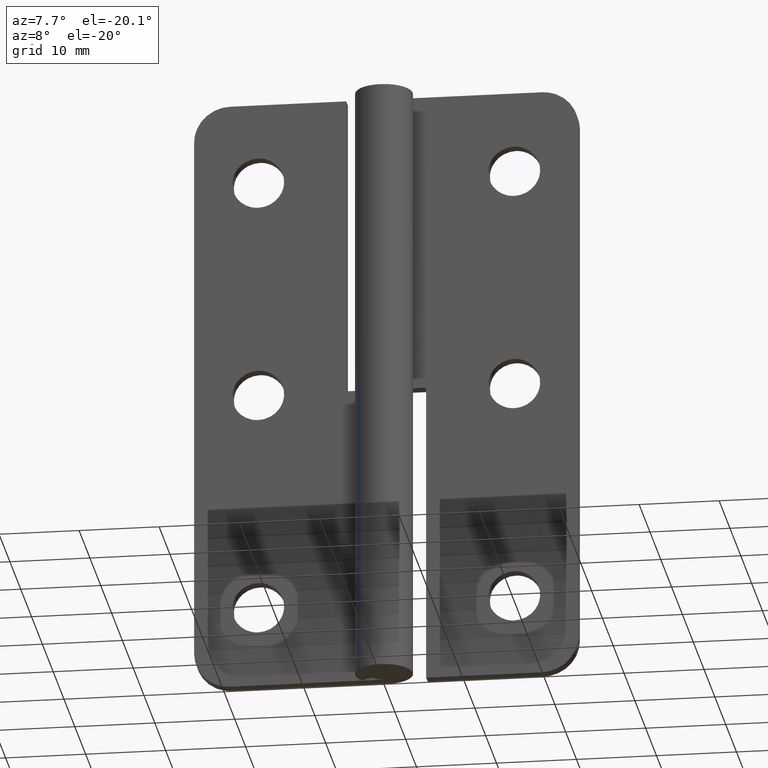
[diagram: clean part render]
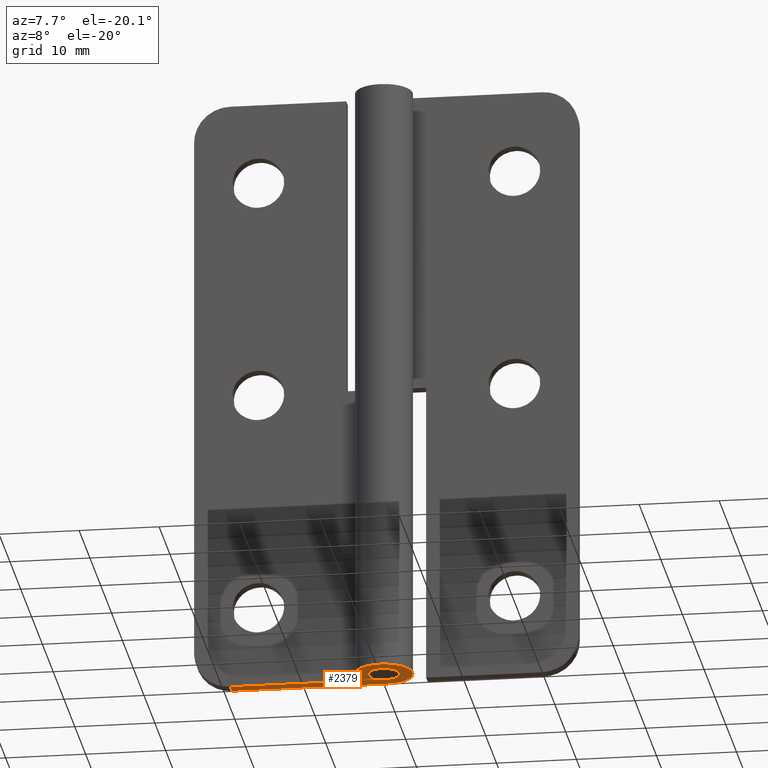
[diagram: same view with one face highlighted and labeled with its STEP entity id]
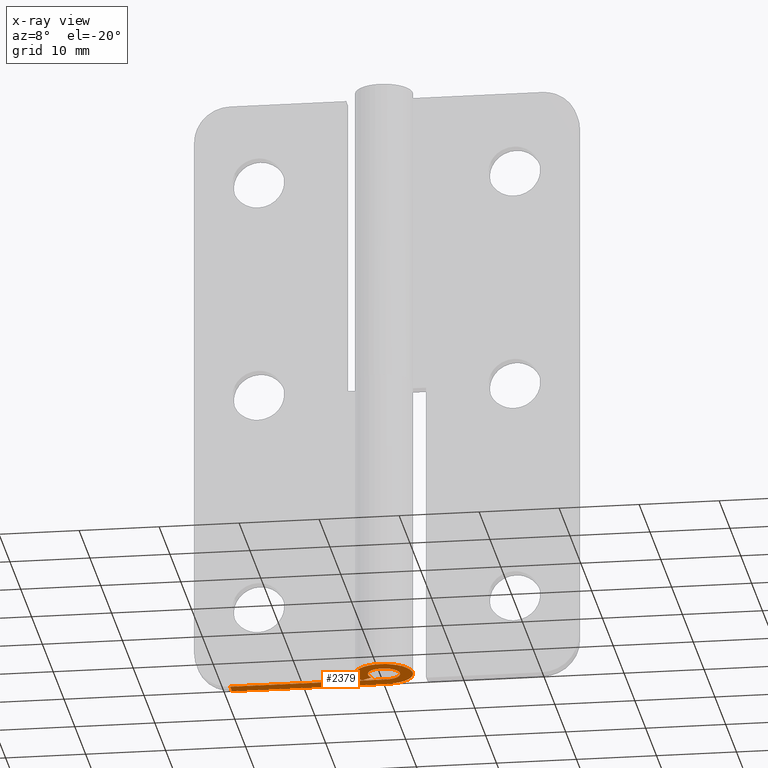
[diagram: x-ray of the same camera — body ghosted, the highlighted face saturated]
A machine part, auxiliary view. The second image highlights one B-rep face of the part: STEP entity #2379.
The next image is the same camera in x-ray: the body ghosted, the highlighted face saturated — about 0% of this face is hidden behind the body in this view.
In plain terms, the highlighted face is a freeform B-spline surface patch.
Its self-contained STEP definition (entity closure, byte-faithful):
#2182=CARTESIAN_POINT('',(-19.500000000000000,3.600002000000000,0.0));
#2183=VERTEX_POINT('',#2182);
#2199=CARTESIAN_POINT('',(-19.500000000000000,2.000004000000000,0.0));
#2200=VERTEX_POINT('',#2199);
#2201=CARTESIAN_POINT('',(-19.500000000000000,2.000004000000000,0.0));
#2202=CARTESIAN_POINT('',(-19.500000000000000,3.600002000000000,0.0));
#2203=QUASI_UNIFORM_CURVE('',1,(#2201,#2202),.UNSPECIFIED.,.F.,.U.);
#2204=EDGE_CURVE('',#2200,#2183,#2203,.T.);
#2310=CARTESIAN_POINT('',(-20.653825791377351,-3.958020639351180,0.0));
#2311=CARTESIAN_POINT('',(4.753442750274535,-3.958020639351180,0.0));
#2312=CARTESIAN_POINT('',(-20.653825791377351,3.959565235968901,0.0));
#2313=CARTESIAN_POINT('',(4.753442750274535,3.959565235968901,0.0));
#2314=B_SPLINE_SURFACE_WITH_KNOTS('',1,1,((#2310,#2312),(#2311,#2313)),.UNSPECIFIED.,.F.,.F.,.U.,(2,2),(2,2),(0.0,25.407268541651892),(0.0,7.917585875320080),.UNSPECIFIED.);
#2315=CARTESIAN_POINT('',(0.0,2.000004000000000,0.0));
#2316=VERTEX_POINT('',#2315);
#2317=CARTESIAN_POINT('',(-19.500000000000000,2.000004000000000,0.0));
#2318=CARTESIAN_POINT('',(0.0,2.000004000000000,0.0));
#2319=QUASI_UNIFORM_CURVE('',1,(#2317,#2318),.UNSPECIFIED.,.F.,.U.);
#2320=EDGE_CURVE('',#2200,#2316,#2319,.T.);
#2321=ORIENTED_EDGE('',*,*,#2320,.F.);
#2322=ORIENTED_EDGE('',*,*,#2204,.T.);
#2323=CARTESIAN_POINT('',(6.615317E-015,3.600002000000000,0.0));
#2324=VERTEX_POINT('',#2323);
#2325=CARTESIAN_POINT('',(6.615317E-015,3.600002000000000,0.0));
#2326=CARTESIAN_POINT('',(-19.500000000000000,3.600002000000000,0.0));
#2327=QUASI_UNIFORM_CURVE('',1,(#2325,#2326),.UNSPECIFIED.,.F.,.U.);
#2328=EDGE_CURVE('',#2324,#2183,#2327,.T.);
#2329=ORIENTED_EDGE('',*,*,#2328,.F.);
#2330=CARTESIAN_POINT('',(-3.026135952000170,1.950004000000000,0.0));
#2331=VERTEX_POINT('',#2330);
#2332=CARTESIAN_POINT('',(0.0,3.600002000000000,0.0));
#2333=CARTESIAN_POINT('',(2.797448051540889,3.600002000000000,0.0));
#2334=CARTESIAN_POINT('',(3.488447798500212,0.889239201308078,0.0));
#2335=CARTESIAN_POINT('',(4.179447545459532,-1.821523597383841,0.0));
#2336=CARTESIAN_POINT('',(1.723368228208350,-3.160698712311253,0.0));
#2337=CARTESIAN_POINT('',(-0.732711089042831,-4.499873827238664,0.0));
#2338=CARTESIAN_POINT('',(-2.637066834372012,-2.450692333006976,0.0));
#2339=CARTESIAN_POINT('',(-4.541422579701196,-0.401510838775284,0.0));
#2340=CARTESIAN_POINT('',(-3.026135952000173,1.950004000000002,0.0));
#2348=(BOUNDED_CURVE()B_SPLINE_CURVE(2,(#2332,#2333,#2334,#2335,#2336,#2337,#2338,#2339,#2340),.UNSPECIFIED.,.F.,.U.)B_SPLINE_CURVE_WITH_KNOTS((3,2,2,2,3),(0.0,0.250000000000000,0.500000000000000,0.750000000000000,1.0),.UNSPECIFIED.)CURVE()GEOMETRIC_REPRESENTATION_ITEM()RATIONAL_B_SPLINE_CURVE((1.0,0.789623566018659,1.0,0.789623566018659,1.0,0.789623566018659,1.0,0.789623566018659,1.0))REPRESENTATION_ITEM(''));
#2349=EDGE_CURVE('',#2324,#2331,#2348,.T.);
#2350=ORIENTED_EDGE('',*,*,#2349,.T.);
#2351=CARTESIAN_POINT('',(-1.681189068379450,1.083337120372718,0.0));
#2352=VERTEX_POINT('',#2351);
#2353=CARTESIAN_POINT('',(-1.681189068379450,1.083337120372718,0.0));
#2354=CARTESIAN_POINT('',(-3.026135952000170,1.950004000000000,0.0));
#2355=QUASI_UNIFORM_CURVE('',1,(#2353,#2354),.UNSPECIFIED.,.F.,.U.);
#2356=EDGE_CURVE('',#2352,#2331,#2355,.T.);
#2357=ORIENTED_EDGE('',*,*,#2356,.F.);
#2358=CARTESIAN_POINT('',(0.0,2.000004000000000,0.0));
#2359=CARTESIAN_POINT('',(1.554140051276076,2.000004000000001,0.0));
#2360=CARTESIAN_POINT('',(1.938029354092475,0.494022492091106,0.0));
#2361=CARTESIAN_POINT('',(2.321918656908873,-1.011959015817788,0.0));
#2362=CARTESIAN_POINT('',(0.957428176398128,-1.755946265423563,0.0));
#2363=CARTESIAN_POINT('',(-0.407062304112616,-2.499933515029337,0.0));
#2364=CARTESIAN_POINT('',(-1.465039246370244,-1.361497707163295,0.0));
#2365=CARTESIAN_POINT('',(-2.523016188627871,-0.223061899297253,0.0));
#2366=CARTESIAN_POINT('',(-1.681189068379447,1.083337120372715,0.0));
#2374=(BOUNDED_CURVE()B_SPLINE_CURVE(2,(#2358,#2359,#2360,#2361,#2362,#2363,#2364,#2365,#2366),.UNSPECIFIED.,.F.,.U.)B_SPLINE_CURVE_WITH_KNOTS((3,2,2,2,3),(0.0,0.250000000000000,0.500000000000000,0.750000000000000,1.0),.UNSPECIFIED.)CURVE()GEOMETRIC_REPRESENTATION_ITEM()RATIONAL_B_SPLINE_CURVE((1.0,0.789623566018660,1.0,0.789623566018660,1.0,0.789623566018660,1.0,0.789623566018660,1.0))REPRESENTATION_ITEM(''));
#2375=EDGE_CURVE('',#2316,#2352,#2374,.T.);
#2376=ORIENTED_EDGE('',*,*,#2375,.F.);
#2377=EDGE_LOOP('',(#2321,#2322,#2329,#2350,#2357,#2376));
#2378=FACE_OUTER_BOUND('',#2377,.T.);
#2379=ADVANCED_FACE('',(#2378),#2314,.F.);